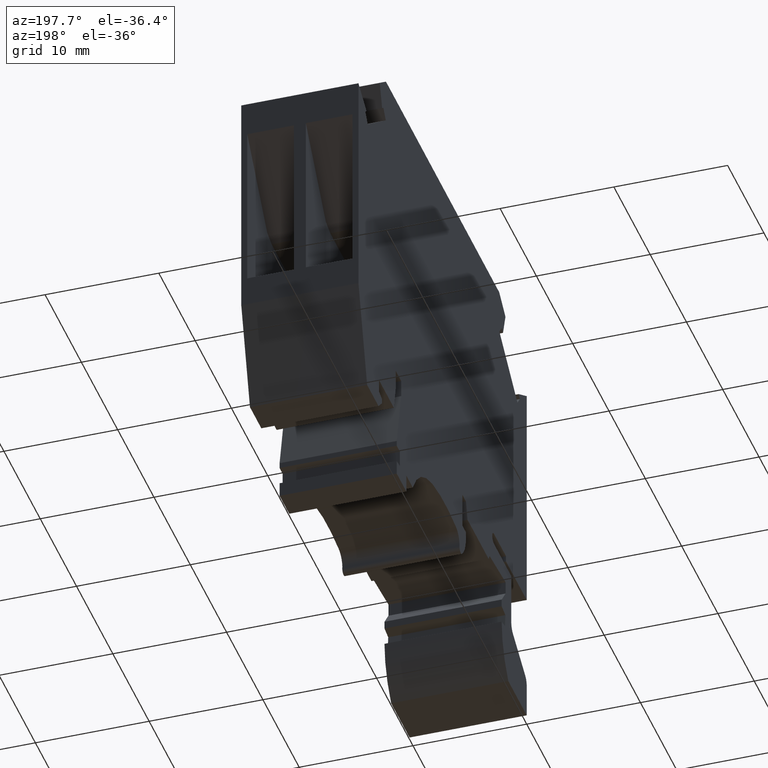
[diagram: clean part render]
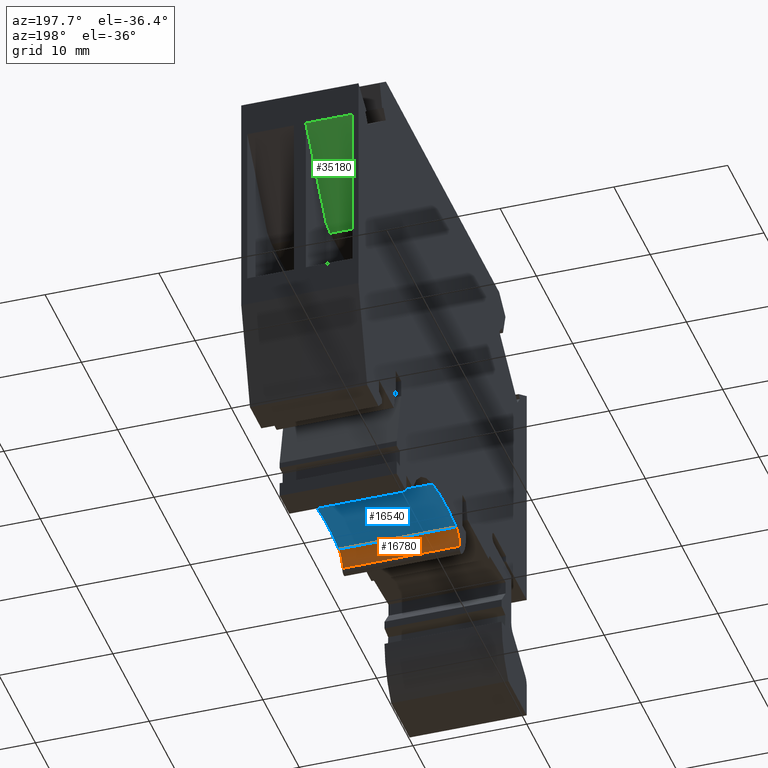
[diagram: same view with three faces highlighted in distinct colors, each labeled with its STEP entity id]
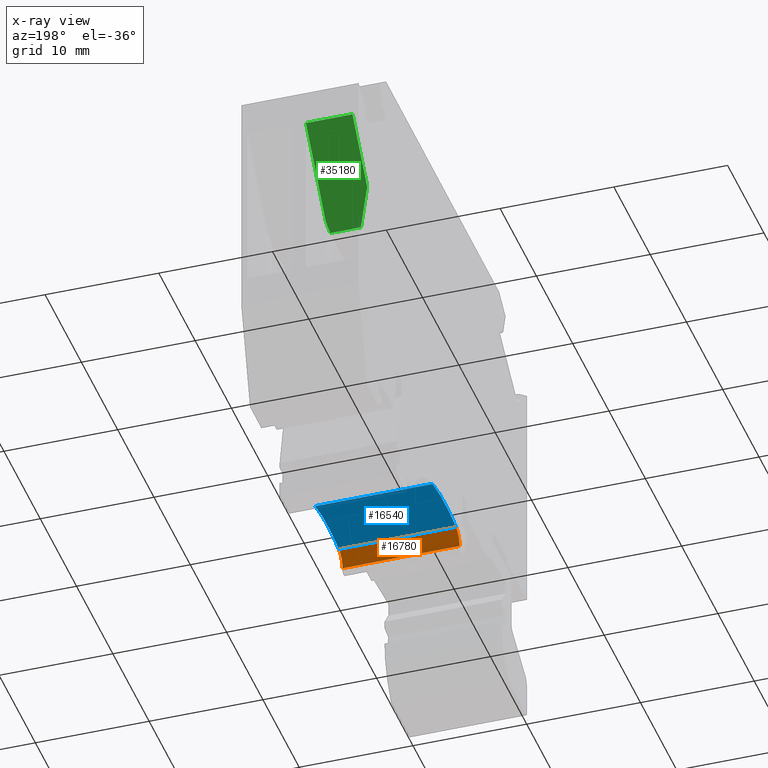
[diagram: x-ray of the same camera — body ghosted, the three highlighted faces saturated]
A machine part, auxiliary view with three faces highlighted in distinct colors.
The next image is the same camera in x-ray (body ghosted, the three faces saturated) — at least one of them is partly hidden behind the body in this view.
Their STEP definitions:

[orange] entity #16780 — the highlighted cylindrical surface (edge-blend (fillet) strip) has radius 1.2 mm, axis along (1, -0, 0).
#3420=CARTESIAN_POINT('',(-25.3616999403209,10.1475104136305,10.3));
#3430=VERTEX_POINT('',#3420);
#3460=CARTESIAN_POINT('',(-25.1387665028014,8.96840029051405,10.3));
#3470=DIRECTION('',(0.,0.,1.));
#3480=DIRECTION('',(1.,0.,0.));
#3490=AXIS2_PLACEMENT_3D('',#3460,#3470,#3480);
#3500=CIRCLE('',#3490,1.19999999999999);
#3510=CARTESIAN_POINT('',(-26.3300155260562,8.82374288629714,10.3));
#3520=VERTEX_POINT('',#3510);
#3530=EDGE_CURVE('',#3430,#3520,#3500,.T.);
#7930=CARTESIAN_POINT('',(-26.3300155260562,8.82374288629714,
-7.105427357601E-15));
#7940=VERTEX_POINT('',#7930);
#7970=CARTESIAN_POINT('',(-25.1387665028014,8.96840029051405,
3.5527136788005E-15));
#7980=DIRECTION('',(0.,0.,1.));
#7990=DIRECTION('',(1.,0.,0.));
#8000=AXIS2_PLACEMENT_3D('',#7970,#7980,#7990);
#8010=CIRCLE('',#8000,1.19999999999999);
#8020=CARTESIAN_POINT('',(-25.3616999403209,10.1475104136305,
-7.105427357601E-15));
#8030=VERTEX_POINT('',#8020);
#8040=EDGE_CURVE('',#8030,#7940,#8010,.T.);
#16460=CARTESIAN_POINT('',(-25.3616999403209,10.1475104136305,5.15));
#16470=DIRECTION('',(0.,0.,-1.));
#16480=VECTOR('',#16470,1.);
#16490=LINE('',#16460,#16480);
#16500=EDGE_CURVE('',#3430,#8030,#16490,.T.);
#16620=CARTESIAN_POINT('',(-25.1387665028014,8.96840029051405,5.15));
#16630=DIRECTION('',(0.,0.,1.));
#16640=DIRECTION('',(1.,0.,0.));
#16650=AXIS2_PLACEMENT_3D('',#16620,#16630,#16640);
#16660=CYLINDRICAL_SURFACE('',#16650,1.19999999999999);
#16670=ORIENTED_EDGE('',*,*,#3530,.T.);
#16680=ORIENTED_EDGE('',*,*,#16500,.F.);
#16690=ORIENTED_EDGE('',*,*,#8040,.F.);
#16700=CARTESIAN_POINT('',(-26.3300155260562,8.82374288629714,5.15));
#16710=DIRECTION('',(0.,0.,-1.));
#16720=VECTOR('',#16710,1.);
#16730=LINE('',#16700,#16720);
#16740=EDGE_CURVE('',#3520,#7940,#16730,.T.);
#16750=ORIENTED_EDGE('',*,*,#16740,.T.);
#16760=EDGE_LOOP('',(#16750,#16690,#16680,#16670));
#16770=FACE_OUTER_BOUND('',#16760,.T.);
#16780=ADVANCED_FACE('',(#16770),#16660,.F.);

[blue] entity #16540 — the highlighted cylindrical surface (partial cylindrical patch) has radius 16.2 mm, axis along (1, -0, 0).
#3330=CARTESIAN_POINT('',(-18.8912739295069,10.0555369279165,10.3));
#3340=VERTEX_POINT('',#3330);
#3370=CARTESIAN_POINT('',(-22.3520985338077,-5.77047624844183,10.3));
#3380=DIRECTION('',(0.,0.,1.));
#3390=DIRECTION('',(1.,0.,0.));
#3400=AXIS2_PLACEMENT_3D('',#3370,#3380,#3390);
#3410=CIRCLE('',#3400,16.2);
#3420=CARTESIAN_POINT('',(-25.3616999403209,10.1475104136305,10.3));
#3430=VERTEX_POINT('',#3420);
#3440=EDGE_CURVE('',#3340,#3430,#3410,.T.);
#8020=CARTESIAN_POINT('',(-25.3616999403209,10.1475104136305,
-7.105427357601E-15));
#8030=VERTEX_POINT('',#8020);
#8060=CARTESIAN_POINT('',(-22.3520985338077,-5.77047624844183,
3.5527136788005E-15));
#8070=DIRECTION('',(0.,0.,1.));
#8080=DIRECTION('',(1.,0.,0.));
#8090=AXIS2_PLACEMENT_3D('',#8060,#8070,#8080);
#8100=CIRCLE('',#8090,16.2);
#8110=CARTESIAN_POINT('',(-18.8912739295069,10.0555369279165,
-7.105427357601E-15));
#8120=VERTEX_POINT('',#8110);
#8130=EDGE_CURVE('',#8120,#8030,#8100,.T.);
#16330=CARTESIAN_POINT('',(-22.3520985338077,-5.77047624844183,5.15));
#16340=DIRECTION('',(0.,0.,1.));
#16350=DIRECTION('',(1.,0.,0.));
#16360=AXIS2_PLACEMENT_3D('',#16330,#16340,#16350);
#16370=CYLINDRICAL_SURFACE('',#16360,16.2);
#16380=ORIENTED_EDGE('',*,*,#3440,.T.);
#16390=CARTESIAN_POINT('',(-18.8912739295069,10.0555369279165,5.15));
#16400=DIRECTION('',(0.,0.,-1.));
#16410=VECTOR('',#16400,1.);
#16420=LINE('',#16390,#16410);
#16430=EDGE_CURVE('',#3340,#8120,#16420,.T.);
#16440=ORIENTED_EDGE('',*,*,#16430,.F.);
#16450=ORIENTED_EDGE('',*,*,#8130,.F.);
#16460=CARTESIAN_POINT('',(-25.3616999403209,10.1475104136305,5.15));
#16470=DIRECTION('',(0.,0.,-1.));
#16480=VECTOR('',#16470,1.);
#16490=LINE('',#16460,#16480);
#16500=EDGE_CURVE('',#3430,#8030,#16490,.T.);
#16510=ORIENTED_EDGE('',*,*,#16500,.T.);
#16520=EDGE_LOOP('',(#16510,#16450,#16440,#16380));
#16530=FACE_OUTER_BOUND('',#16520,.T.);
#16540=ADVANCED_FACE('',(#16530),#16370,.F.);

[green] entity #35180 — the highlighted planar face has unit normal (0, 0.7568, -0.6536).
#33890=CARTESIAN_POINT('',(1.49790146619231,34.3295237515583,
0.525000000000004));
#33900=VERTEX_POINT('',#33890);
#33950=CARTESIAN_POINT('',(1.49790146619231,34.3295237515583,5.15));
#33960=DIRECTION('',(0.,0.,1.));
#33970=VECTOR('',#33960,1.);
#33980=LINE('',#33950,#33970);
#33990=CARTESIAN_POINT('',(1.49790146619231,34.3295237515583,4.625));
#34000=VERTEX_POINT('',#33990);
#34010=EDGE_CURVE('',#33900,#34000,#33980,.T.);
#34720=CARTESIAN_POINT('',(1.4979014661923,34.3295237515583,1.75));
#34730=DIRECTION('',(0.756823007769156,-0.653619870346096,0.));
#34740=DIRECTION('',(-0.653619870346096,-0.756823007769156,0.));
#34750=AXIS2_PLACEMENT_3D('',#34720,#34730,#34740);
#34760=PLANE('',#34750);
#34770=CARTESIAN_POINT('',(-19.9165433974443,9.53385075155829,
0.356146475126304));
#34780=DIRECTION('',(-0.643771391053407,-0.745419505430254,
-0.172939749581399));
#34790=VECTOR('',#34780,1.);
#34800=LINE('',#34770,#34790);
#34810=CARTESIAN_POINT('',(-4.02565782276799,27.9338235222359,
4.62500000000001));
#34820=VERTEX_POINT('',#34810);
#34830=CARTESIAN_POINT('',(-4.67709853380775,27.1795237515583,4.45));
#34840=VERTEX_POINT('',#34830);
#34850=EDGE_CURVE('',#34820,#34840,#34800,.T.);
#34860=ORIENTED_EDGE('',*,*,#34850,.T.);
#34870=CARTESIAN_POINT('',(-19.9165433974443,9.53385075155829,4.625));
#34880=DIRECTION('',(-0.653619870346096,-0.756823007769156,0.));
#34890=VECTOR('',#34880,1.);
#34900=LINE('',#34870,#34890);
#34910=EDGE_CURVE('',#34000,#34820,#34900,.T.);
#34920=ORIENTED_EDGE('',*,*,#34910,.T.);
#34930=ORIENTED_EDGE('',*,*,#34010,.T.);
#34940=CARTESIAN_POINT('',(-19.9165433974443,9.53385075155829,
0.525000000000004));
#34950=DIRECTION('',(0.653619870346096,0.756823007769156,0.));
#34960=VECTOR('',#34950,1.);
#34970=LINE('',#34940,#34960);
#34980=CARTESIAN_POINT('',(-2.55533629453588,29.6363010812415,
0.525000000000004));
#34990=VERTEX_POINT('',#34980);
#35000=EDGE_CURVE('',#34990,#33900,#34970,.T.);
#35010=ORIENTED_EDGE('',*,*,#35000,.T.);
#35020=CARTESIAN_POINT('',(-19.9165433974443,9.53385075155829,
10.548497594321));
#35030=DIRECTION('',(-0.611526032477599,-0.70808277444774,
0.353064719467406));
#35040=VECTOR('',#35030,1.);
#35050=LINE('',#35020,#35040);
#35060=CARTESIAN_POINT('',(-4.67709853380776,27.1795237515583,1.75));
#35070=VERTEX_POINT('',#35060);
#35080=EDGE_CURVE('',#34990,#35070,#35050,.T.);
#35090=ORIENTED_EDGE('',*,*,#35080,.F.);
#35100=CARTESIAN_POINT('',(-4.67709853380776,27.1795237515583,5.15));
#35110=DIRECTION('',(0.,0.,-1.));
#35120=VECTOR('',#35110,1.);
#35130=LINE('',#35100,#35120);
#35140=EDGE_CURVE('',#34840,#35070,#35130,.T.);
#35150=ORIENTED_EDGE('',*,*,#35140,.T.);
#35160=EDGE_LOOP('',(#35150,#35090,#35010,#34930,#34920,#34860));
#35170=FACE_OUTER_BOUND('',#35160,.T.);
#35180=ADVANCED_FACE('',(#35170),#34760,.T.);